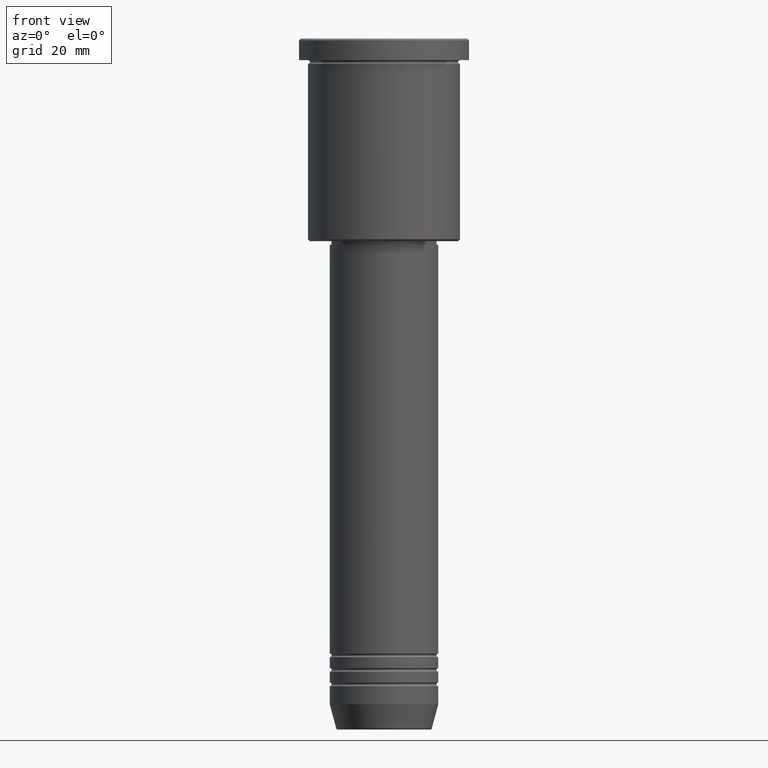
[diagram: clean part render]
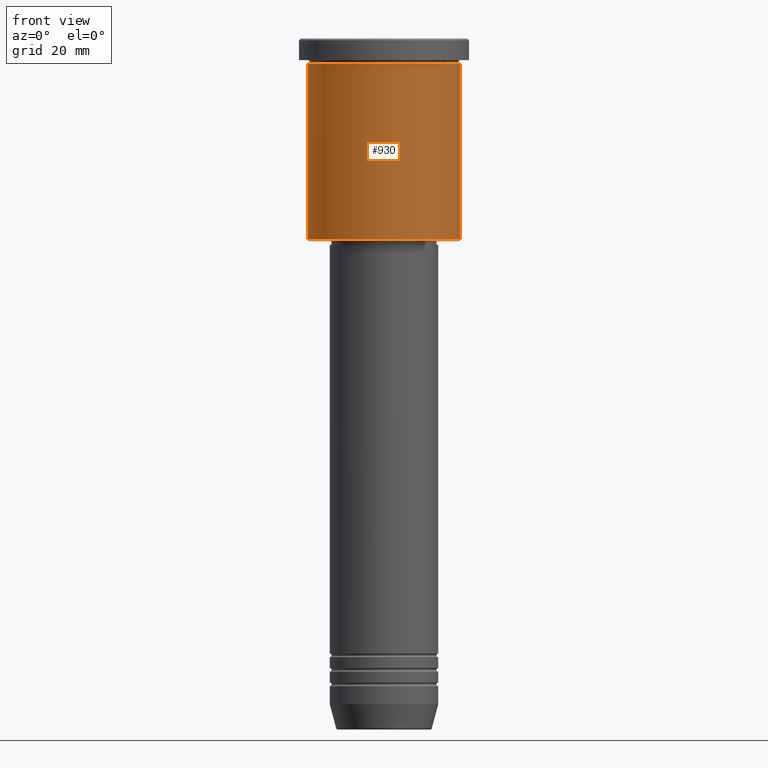
[diagram: same view with one face highlighted and labeled with its STEP entity id]
A machine part, front view. The second image highlights one B-rep face of the part: STEP entity #930.
In plain terms, the highlighted cylindrical surface (partial cylindrical patch) has radius 21 mm, axis along (-0, -0, 1).
Its self-contained STEP definition (entity closure, byte-faithful):
#14 = DIRECTION ( 'NONE',  ( -1.000000000000000000, 0.000000000000000000, 0.000000000000000000 ) ) ;
#21 = AXIS2_PLACEMENT_3D ( 'NONE', #113, #747, #14 ) ;
#93 = CARTESIAN_POINT ( 'NONE',  ( -21.00000000000000000, 2.571758278209441661E-15, -6.999999999999993783 ) ) ;
#109 = VERTEX_POINT ( 'NONE', #445 ) ;
#113 = CARTESIAN_POINT ( 'NONE',  ( 0.000000000000000000, 0.000000000000000000, -55.49999999999998579 ) ) ;
#156 = VERTEX_POINT ( 'NONE', #93 ) ;
#188 = DIRECTION ( 'NONE',  ( -0.000000000000000000, -0.000000000000000000, 1.000000000000000000 ) ) ;
#212 = DIRECTION ( 'NONE',  ( -0.000000000000000000, -0.000000000000000000, 1.000000000000000000 ) ) ;
#227 = CARTESIAN_POINT ( 'NONE',  ( 21.00000000000000000, 0.000000000000000000, 0.000000000000000000 ) ) ;
#253 = VECTOR ( 'NONE', #1127, 1000.000000000000000 ) ;
#274 = AXIS2_PLACEMENT_3D ( 'NONE', #393, #551, #482 ) ;
#294 = EDGE_CURVE ( 'NONE', #109, #1183, #709, .T. ) ;
#330 = LINE ( 'NONE', #699, #564 ) ;
#377 = ORIENTED_EDGE ( 'NONE', *, *, #294, .T. ) ;
#393 = CARTESIAN_POINT ( 'NONE',  ( 0.000000000000000000, 0.000000000000000000, 0.000000000000000000 ) ) ;
#445 = CARTESIAN_POINT ( 'NONE',  ( -21.00000000000000000, 2.571758278209441661E-15, -55.49999999999998579 ) ) ;
#458 = ORIENTED_EDGE ( 'NONE', *, *, #828, .T. ) ;
#475 = CARTESIAN_POINT ( 'NONE',  ( 21.00000000000000000, 0.000000000000000000, -6.999999999999993783 ) ) ;
#482 = DIRECTION ( 'NONE',  ( 1.000000000000000000, 0.000000000000000000, 0.000000000000000000 ) ) ;
#497 = ORIENTED_EDGE ( 'NONE', *, *, #937, .F. ) ;
#507 = CIRCLE ( 'NONE', #948, 21.00000000000000000 ) ;
#526 = EDGE_LOOP ( 'NONE', ( #1011, #377, #458, #497 ) ) ;
#551 = DIRECTION ( 'NONE',  ( -0.000000000000000000, -0.000000000000000000, 1.000000000000000000 ) ) ;
#556 = DIRECTION ( 'NONE',  ( 1.000000000000000000, 0.000000000000000000, 0.000000000000000000 ) ) ;
#564 = VECTOR ( 'NONE', #212, 1000.000000000000000 ) ;
#612 = LINE ( 'NONE', #227, #253 ) ;
#699 = CARTESIAN_POINT ( 'NONE',  ( -21.00000000000000000, 2.571758278209441661E-15, 0.000000000000000000 ) ) ;
#709 = CIRCLE ( 'NONE', #21, 21.00000000000000000 ) ;
#745 = FACE_OUTER_BOUND ( 'NONE', #526, .T. ) ;
#747 = DIRECTION ( 'NONE',  ( -0.000000000000000000, -0.000000000000000000, 1.000000000000000000 ) ) ;
#820 = CARTESIAN_POINT ( 'NONE',  ( 0.000000000000000000, 0.000000000000000000, -6.999999999999993783 ) ) ;
#828 = EDGE_CURVE ( 'NONE', #1183, #933, #612, .T. ) ;
#930 = ADVANCED_FACE ( 'NONE', ( #745 ), #1030, .T. ) ;
#933 = VERTEX_POINT ( 'NONE', #475 ) ;
#937 = EDGE_CURVE ( 'NONE', #156, #933, #507, .T. ) ;
#948 = AXIS2_PLACEMENT_3D ( 'NONE', #820, #188, #556 ) ;
#1011 = ORIENTED_EDGE ( 'NONE', *, *, #1156, .F. ) ;
#1030 = CYLINDRICAL_SURFACE ( 'NONE', #274, 21.00000000000000000 ) ;
#1082 = CARTESIAN_POINT ( 'NONE',  ( 21.00000000000000000, 0.000000000000000000, -55.49999999999998579 ) ) ;
#1127 = DIRECTION ( 'NONE',  ( -0.000000000000000000, -0.000000000000000000, 1.000000000000000000 ) ) ;
#1156 = EDGE_CURVE ( 'NONE', #109, #156, #330, .T. ) ;
#1183 = VERTEX_POINT ( 'NONE', #1082 ) ;